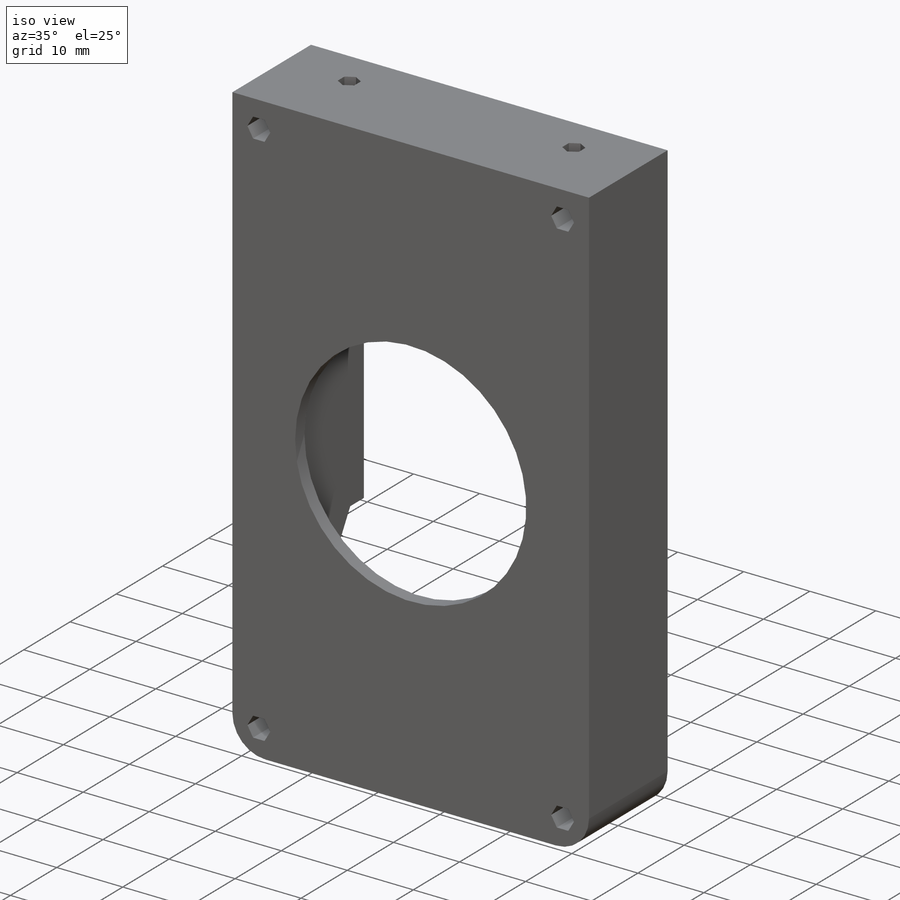
[diagram: iso view]
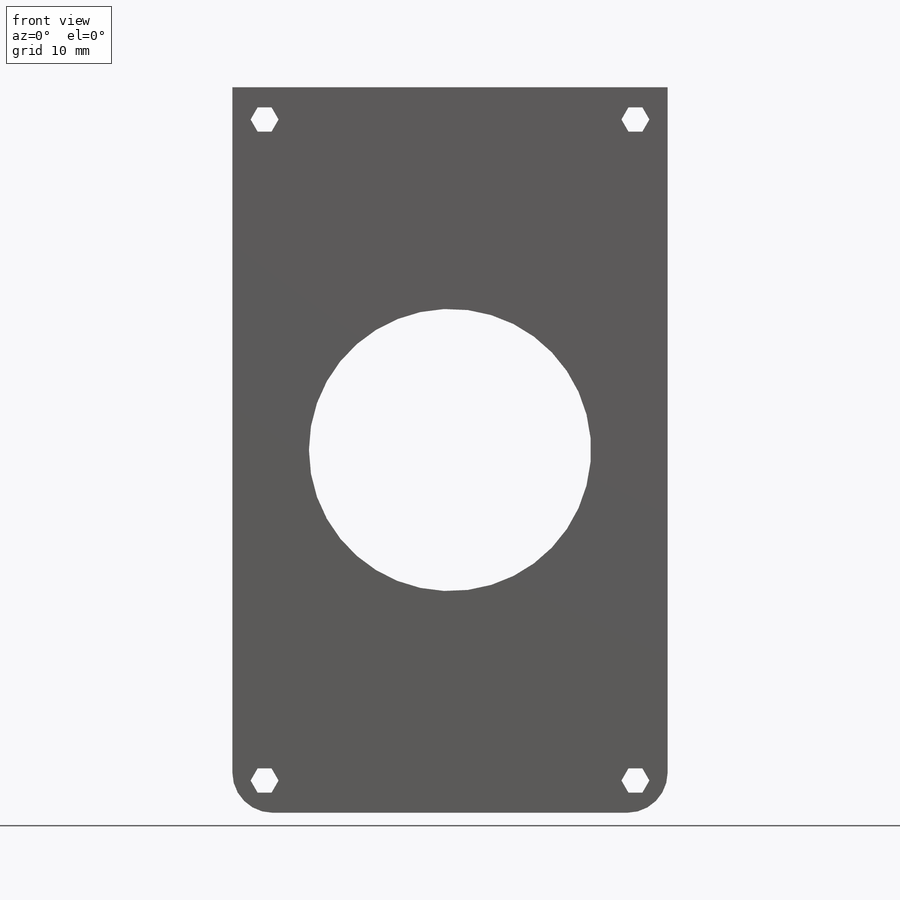
[diagram: front view]
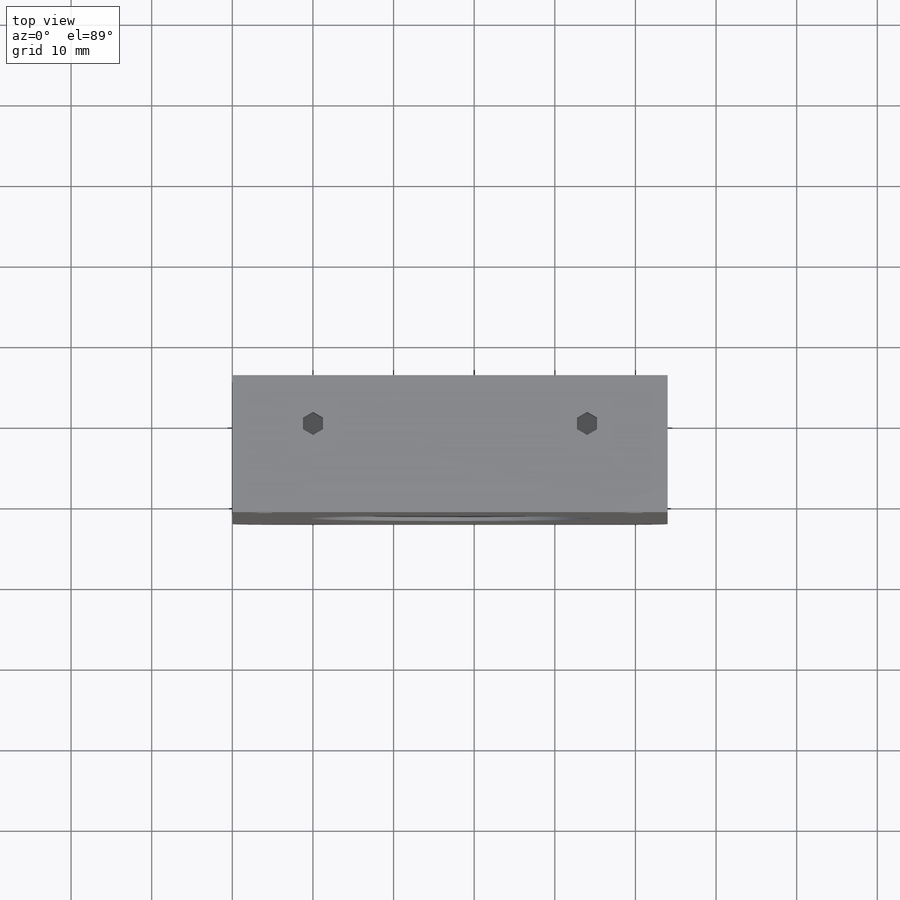
[diagram: top view]
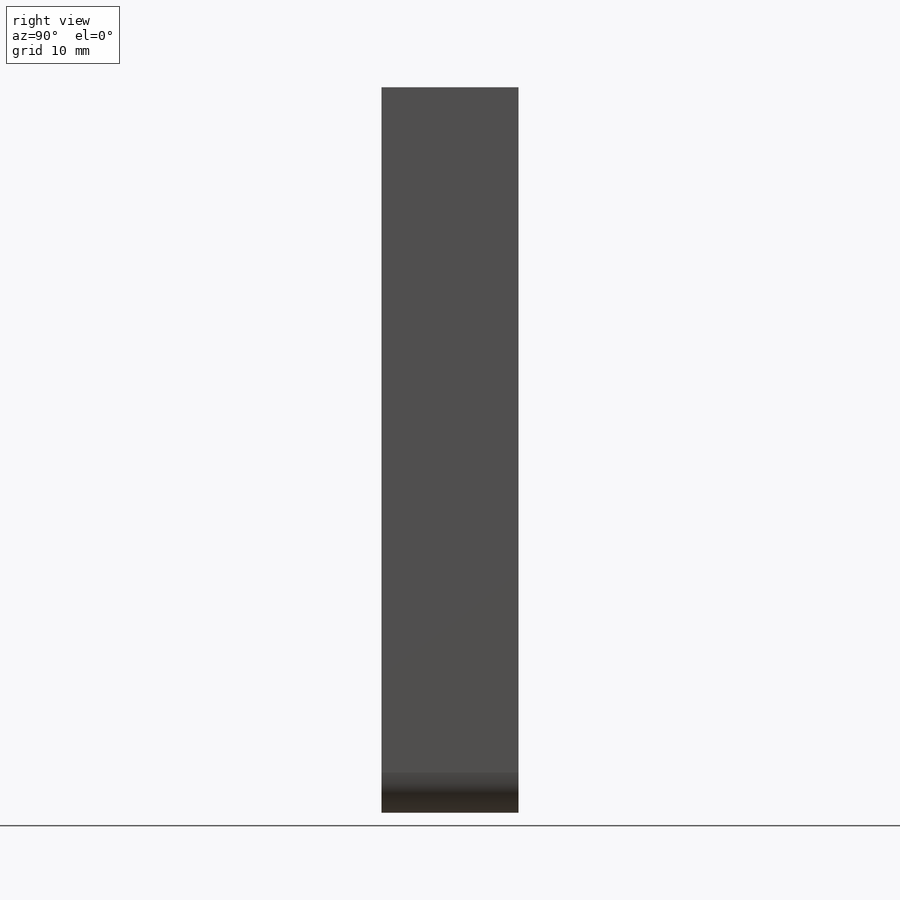
[diagram: right view]
SOLIDWORKS PART (.sldprt)
format: sldprt  version: not decoded by parser v0  size: 412,672 bytes
history: native  units: mm
features: sketch x11, cut_extrude x8, extrude x3, material x1, fillet x1 (+12 scaffold rows collapsed)
feature tree (36):
  scaffold x12  (default folders/planes/origin — collapsed)
  material  "Material <not specified>"
  sketch  "Sketch1"  dims[D1=90.0mm D2=54.0mm D3=8.0mm D4=8.0mm D5=8.0mm D6=8.0mm]
  extrude  "Boss-Extrude1"  Depth=30mm
  sketch  "Sketch2"  dims[c1.D1=19.0mm c1.D2=15.0mm c1.D3=10.2mm c1.D4=19.0mm c1.D5=15.0mm c1.D6=10.2mm c2.D1=20.0mm c2.D4=20.0mm]
  cut_extrude  "Cut-Extrude1"  Depth=4.1mm
  sketch  "Sketch5"  dims[c1.D1=8.2mm c1.D2=8.2mm c2.D1=8.2mm c2.D3=0.0mm]
  cut_extrude  "Cut-Extrude2"  Depth=0.5mm
  sketch  "Sketch6"  dims[c1.D1=19.0mm c1.D2=15.0mm c1.D3=19.0mm c1.D4=15.0mm c1.D5=10.2mm c1.D6=10.2mm c2.D1=20.0mm c2.D3=20.0mm]
  cut_extrude  "Cut-Extrude3"  Depth=4.1mm
  sketch  "Sketch7"  dims[c1.D3=8.2mm c1.D1=19.0mm c1.D2=8.2mm c2.D3=20.0mm c2.D1=19.0mm c2.D2=20.0mm c2.D5=0.0mm c2.D6=2.0mm c3.D1=20.0mm c3.D6=0.0mm c4.D1=15.0mm c4.D2=15.0mm c4.D4=2.0]
  cut_extrude  "Cut-Extrude4"  Depth=0.5mm
  sketch  "Sketch8"
  extrude  "Boss-Extrude2"  Depth=2mm
  sketch  "Sketch9"
  extrude  "Boss-Extrude3"  Depth=2mm
  sketch  "Sketch12"
  cut_extrude  "Cut-Extrude7"  Depth=17mm
  sketch  "Sketch13"  dims[c1.D1=3.0mm c1.D2=3.0mm c1.D3=4.0mm c1.D4=~6.365353mm c2.D3=4.0mm c2.D4=4.0mm c2.D5=4.0mm c2.D6=4.0mm c2.D8=2.5mm c2.D7=2.0]
  cut_extrude  "Cut-Extrude8"  [1 undecoded]
  sketch  "Sketch14"  dims[D1=35.0mm D2=19.0mm D3=37.0mm D4=38.0mm]
  cut_extrude  "Cut-Extrude9"  [1 undecoded]
  sketch  "Sketch15"  dims[D1=2.5mm D2=2.5mm D3=11.0mm D4=11.0mm D5=10.0mm D6=10.0mm]
  cut_extrude  "Cut-Extrude10"  Depth=5mm
  fillet  "Fillet1"  Radius=5mm
decode coverage: 18 of 23 modeling features carry decoded parameters
note: ~ marks probable driven/reference dimensions
note: 2 parameter values undecoded
note: suppression state not decoded; provenance and decode notes live in map.json
